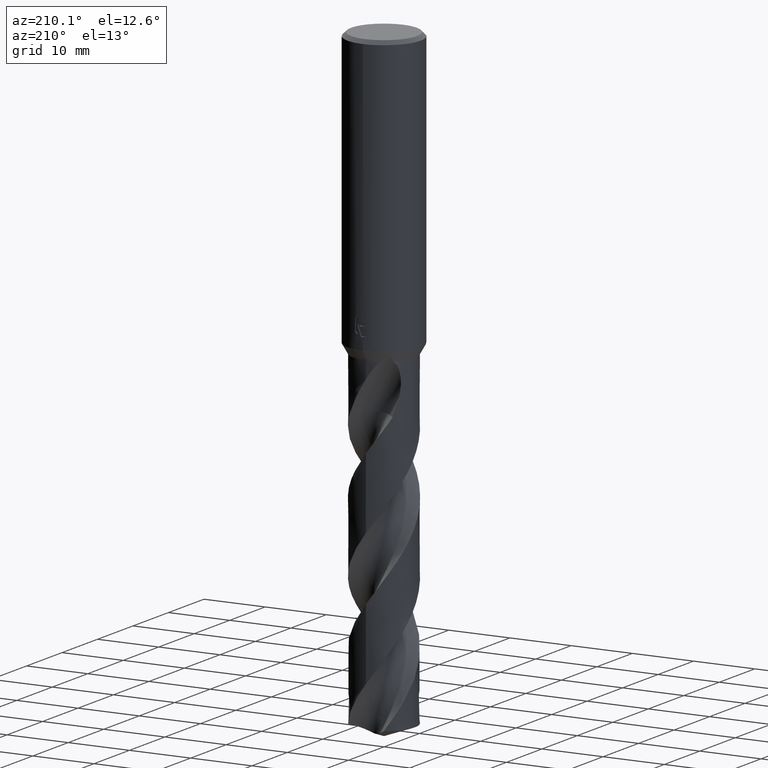
[diagram: clean part render]
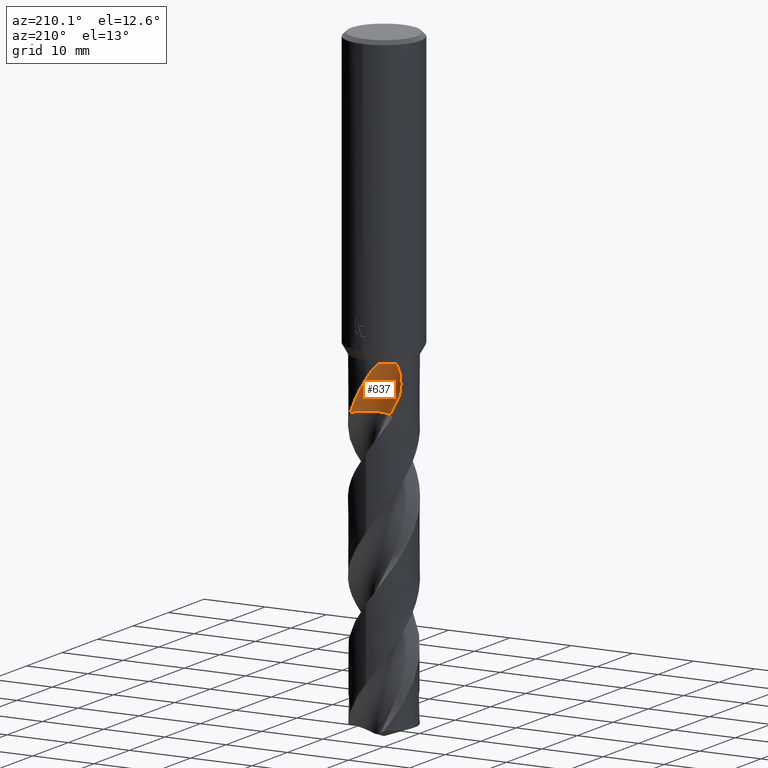
[diagram: same view with one face highlighted and labeled with its STEP entity id]
A machine part, auxiliary view. The second image highlights one B-rep face of the part: STEP entity #637.
In plain terms, the highlighted face is a SurfaceOfRevolution surface.
Its self-contained STEP definition (entity closure, byte-faithful):
#289=EDGE_CURVE('',#733,#475,#804,.T.);
#337=EDGE_CURVE('',#735,#377,#856,.T.);
#377=VERTEX_POINT('',#901);
#391=VERTEX_POINT('',#917);
#467=EDGE_CURVE('',#475,#735,#997,.T.);
#475=VERTEX_POINT('',#1005);
#489=VERTEX_POINT('',#1020);
#553=EDGE_CURVE('',#605,#489,#1089,.T.);
#585=EDGE_CURVE('',#489,#391,#1124,.T.);
#605=VERTEX_POINT('',#1145);
#637=ADVANCED_FACE('',(#1180),#1181,.F.);
#681=EDGE_CURVE('',#733,#605,#1231,.T.);
#733=VERTEX_POINT('',#1290);
#735=VERTEX_POINT('',#1292);
#757=EDGE_CURVE('',#391,#377,#1316,.T.);
#804=CIRCLE('',#1381,3.4);
#856=CIRCLE('',#2723,22.1608254907705);
#901=CARTESIAN_POINT('',(-4.14948817813422,2.96493210192964,-51.9236798045269));
#917=CARTESIAN_POINT('',(-3.86434643755276,3.32803344643249,-47.0));
#997=CIRCLE('',#3899,3.4);
#1005=CARTESIAN_POINT('',(-0.412014399991042,1.55504023704718,-54.7162));
#1020=CARTESIAN_POINT('',(-1.73731639661873,4.79486305831978,-47.0));
#1089=B_SPLINE_CURVE_WITH_KNOTS('',3,(#4236,#4237,#4238,#4239,#4240,#4241,#4242,#4243,#4244,#4245,#4246,#4247,#4248,#4249),.UNSPECIFIED.,.F.,.F.,(4,2,2,2,2,2,4),(0.0,2.49872115833258,3.86307340073771,5.09882207220163,6.5344464686445,8.25894814408787,9.14539973170347),.UNSPECIFIED.);
#1124=B_SPLINE_CURVE_WITH_KNOTS('',3,(#4397,#4398,#4399,#4400,#4401,#4402,#4403,#4404,#4405,#4406,#4407,#4408),.UNSPECIFIED.,.F.,.F.,(4,2,2,2,2,4),(0.0,1.10723314073602,2.11958785116556,3.14095907865911,3.76676178982449,4.41909351230659),.UNSPECIFIED.);
#1145=CARTESIAN_POINT('',(-1.50822059244601E-012,5.09990431853075,-49.2950292607119));
#1180=FACE_OUTER_BOUND('',#4532,.T.);
#1181=SURFACE_OF_REVOLUTION('',#4533,#4534);
#1231=B_SPLINE_CURVE_WITH_KNOTS('',3,(#4739,#4740,#4741,#4742,#4743,#4744,#4745,#4746,#4747,#4748,#4749,#4750,#4751,#4752),.UNSPECIFIED.,.F.,.F.,(4,2,2,2,2,2,4),(0.0,2.49872115833258,3.86307340073771,5.09882207220163,6.5344464686445,8.25894814408787,9.14539973170347),.UNSPECIFIED.);
#1290=CARTESIAN_POINT('',(3.24976651141065,3.93041292072291,-54.7162));
#1292=CARTESIAN_POINT('',(-2.40416305596356,2.52583694403645,-54.7162));
#1316=B_SPLINE_CURVE_WITH_KNOTS('',3,(#5245,#5246,#5247,#5248,#5249,#5250,#5251,#5252,#5253,#5254),.UNSPECIFIED.,.F.,.F.,(4,2,2,2,4),(0.0,0.956613033133913,2.2940963464636,2.99939022102253,3.73564279157762),.UNSPECIFIED.);
#1381=AXIS2_PLACEMENT_3D('',#5341,#5342,#5343);
#2723=AXIS2_PLACEMENT_3D('',#5402,#5403,#5404);
#3899=AXIS2_PLACEMENT_3D('',#5510,#5511,#5512);
#4236=CARTESIAN_POINT('',(3.24976651141065,3.93041292072291,-54.7162));
#4237=CARTESIAN_POINT('',(2.91335754670991,4.20856277477289,-54.0068370282236));
#4238=CARTESIAN_POINT('',(2.52656084275386,4.45582076374709,-53.3454817741846));
#4239=CARTESIAN_POINT('',(1.85210085701279,4.75888653671199,-52.2406486507469));
#4240=CARTESIAN_POINT('',(1.60939851596232,4.84606701674677,-51.8519328156349));
#4241=CARTESIAN_POINT('',(1.13955848368549,4.97636041394906,-51.0994845990313));
#4242=CARTESIAN_POINT('',(0.914518422784485,5.02239262849197,-50.7392588890588));
#4243=CARTESIAN_POINT('',(0.427403815596067,5.08882762791527,-49.9628833852051));
#4244=CARTESIAN_POINT('',(0.161259963986772,5.10442457564482,-49.5406562203466));
#4245=CARTESIAN_POINT('',(-0.429776382696007,5.09199144791901,-48.6373771091695));
#4246=CARTESIAN_POINT('',(-0.780200371234543,5.053538535443,-48.1234042208602));
#4247=CARTESIAN_POINT('',(-1.32827713525057,4.92758786750428,-47.4360199193473));
#4248=CARTESIAN_POINT('',(-1.52883937982554,4.8704006693747,-47.2043644475746));
#4249=CARTESIAN_POINT('',(-1.73731639661872,4.79486305831978,-47.0));
#4397=CARTESIAN_POINT('',(-1.59277174790953,5.1499,-47.0));
#4398=CARTESIAN_POINT('',(-1.70971402634468,4.79983877367687,-47.0));
#4399=CARTESIAN_POINT('',(-1.88818624894995,4.47619437675276,-46.9999999999859));
#4400=CARTESIAN_POINT('',(-2.35169074927456,3.94498562605708,-46.9999999999859));
#4401=CARTESIAN_POINT('',(-2.61830594338302,3.7392700400087,-47.0000000000008));
#4402=CARTESIAN_POINT('',(-3.22463754976274,3.4400260263407,-47.0000000000008));
#4403=CARTESIAN_POINT('',(-3.55413334776805,3.3527956448789,-47.0000000000001));
#4404=CARTESIAN_POINT('',(-4.10065092974092,3.30891485571583,-47.0000000000001));
#4405=CARTESIAN_POINT('',(-4.30941010939906,3.31495683389775,-47.0));
#4406=CARTESIAN_POINT('',(-4.73156431446692,3.36906504336922,-47.0));
#4407=CARTESIAN_POINT('',(-4.9437456025048,3.41875647593744,-47.0));
#4408=CARTESIAN_POINT('',(-5.1499,3.48750298960374,-47.0));
#4532=EDGE_LOOP('',(#5702,#5703,#5704,#5705,#5706,#5707,#5708));
#4533=(B_SPLINE_CURVE(3,(#5710,#5711,#5712,#5713,#5714,#5715,#5716,#5717,#5718),.UNSPECIFIED.,.F.,.F.)B_SPLINE_CURVE_WITH_KNOTS((4,1,3,1,4),(-2.85637321323211,-2.55358818437631,-2.2508031555205,-1.9480181266647,-1.64523309780889),.UNSPECIFIED.)RATIONAL_B_SPLINE_CURVE((1.09167877369921,1.03055959123307,0.96944040876693,1.03055959123307,1.09167877369921,1.03055959123307,0.96944040876693,1.03055959123307,1.09167877369921))BOUNDED_CURVE()REPRESENTATION_ITEM('')GEOMETRIC_REPRESENTATION_ITEM()CURVE());
#4534=AXIS1_PLACEMENT('',#5725,#5726);
#4739=CARTESIAN_POINT('',(3.24976651141065,3.93041292072291,-54.7162));
#4740=CARTESIAN_POINT('',(2.91335754670991,4.20856277477289,-54.0068370282236));
#4741=CARTESIAN_POINT('',(2.52656084275386,4.45582076374709,-53.3454817741846));
#4742=CARTESIAN_POINT('',(1.85210085701279,4.75888653671199,-52.2406486507469));
#4743=CARTESIAN_POINT('',(1.60939851596232,4.84606701674677,-51.8519328156349));
#4744=CARTESIAN_POINT('',(1.13955848368549,4.97636041394906,-51.0994845990313));
#4745=CARTESIAN_POINT('',(0.914518422784485,5.02239262849197,-50.7392588890588));
#4746=CARTESIAN_POINT('',(0.427403815596067,5.08882762791527,-49.9628833852051));
#4747=CARTESIAN_POINT('',(0.161259963986772,5.10442457564482,-49.5406562203466));
#4748=CARTESIAN_POINT('',(-0.429776382696007,5.09199144791901,-48.6373771091695));
#4749=CARTESIAN_POINT('',(-0.780200371234543,5.053538535443,-48.1234042208602));
#4750=CARTESIAN_POINT('',(-1.32827713525057,4.92758786750428,-47.4360199193473));
#4751=CARTESIAN_POINT('',(-1.52883937982554,4.8704006693747,-47.2043644475746));
#4752=CARTESIAN_POINT('',(-1.73731639661872,4.79486305831978,-47.0));
#5245=CARTESIAN_POINT('',(-3.86434643755276,3.32803344643249,-47.0));
#5246=CARTESIAN_POINT('',(-3.99035627151439,3.18171784424399,-47.2537557644386));
#5247=CARTESIAN_POINT('',(-4.0896527958812,3.04963820249647,-47.5691350157603));
#5248=CARTESIAN_POINT('',(-4.26784836530952,2.7976514970042,-48.4373537955779));
#5249=CARTESIAN_POINT('',(-4.32692432977883,2.69940573817909,-49.0510601715517));
#5250=CARTESIAN_POINT('',(-4.33240437159778,2.69059931547266,-50.0991112318));
#5251=CARTESIAN_POINT('',(-4.31857142792948,2.71327046204746,-50.4610470489588));
#5252=CARTESIAN_POINT('',(-4.25956749588456,2.80504014511745,-51.1934643086016));
#5253=CARTESIAN_POINT('',(-4.21317925601455,2.87579385458063,-51.5614249426823));
#5254=CARTESIAN_POINT('',(-4.14948817813421,2.96493210192964,-51.9236798045269));
#5341=CARTESIAN_POINT('',(1.84390896763157E-005,4.92998156091032,-54.7162));
#5342=DIRECTION('',(0.0,0.0,-1.0));
#5343=DIRECTION('',(0.707101357904082,0.707112204427419,0.0));
#5402=CARTESIAN_POINT('',(-1.7288363548502,24.65,-55.7967227217814));
#5403=DIRECTION('',(-0.847998304005088,7.2341638399316E-018,-0.52999894000318));
#5404=DIRECTION('',(-0.0535598122533606,-0.994880693138896,0.085695699605377));
#5510=CARTESIAN_POINT('',(1.84390896763157E-005,4.92998156091032,-54.7162));
#5511=DIRECTION('',(0.0,0.0,-1.0));
#5512=DIRECTION('',(0.707101357904082,0.707112204427419,0.0));
#5702=ORIENTED_EDGE('',*,*,#757,.F.);
#5703=ORIENTED_EDGE('',*,*,#585,.F.);
#5704=ORIENTED_EDGE('',*,*,#553,.F.);
#5705=ORIENTED_EDGE('',*,*,#681,.F.);
#5706=ORIENTED_EDGE('',*,*,#289,.T.);
#5707=ORIENTED_EDGE('',*,*,#467,.T.);
#5708=ORIENTED_EDGE('',*,*,#337,.T.);
#5710=CARTESIAN_POINT('',(-2.40416305596356,2.52583694403645,-54.7162));
#5711=CARTESIAN_POINT('',(-1.93326096653161,2.05492763124049,-54.7162));
#5712=CARTESIAN_POINT('',(-0.708781265938904,1.3858073030285,-54.7162));
#5713=CARTESIAN_POINT('',(0.678858863009549,1.5325295689667,-54.7162));
#5714=CARTESIAN_POINT('',(1.29465184541343,1.78611064383523,-54.7162));
#5715=CARTESIAN_POINT('',(1.91044482781731,2.03969171870376,-54.7162));
#5716=CARTESIAN_POINT('',(2.99901805427024,2.91266415895602,-54.7162));
#5717=CARTESIAN_POINT('',(3.39724384070574,4.25000808398352,-54.7162));
#5718=CARTESIAN_POINT('',(3.39998954165164,4.91596365294864,-54.7162));
#5725=CARTESIAN_POINT('',(-1.7288363548502,24.65,-55.7967227217814));
#5726=DIRECTION('',(0.847998304005088,-0.0,0.52999894000318));